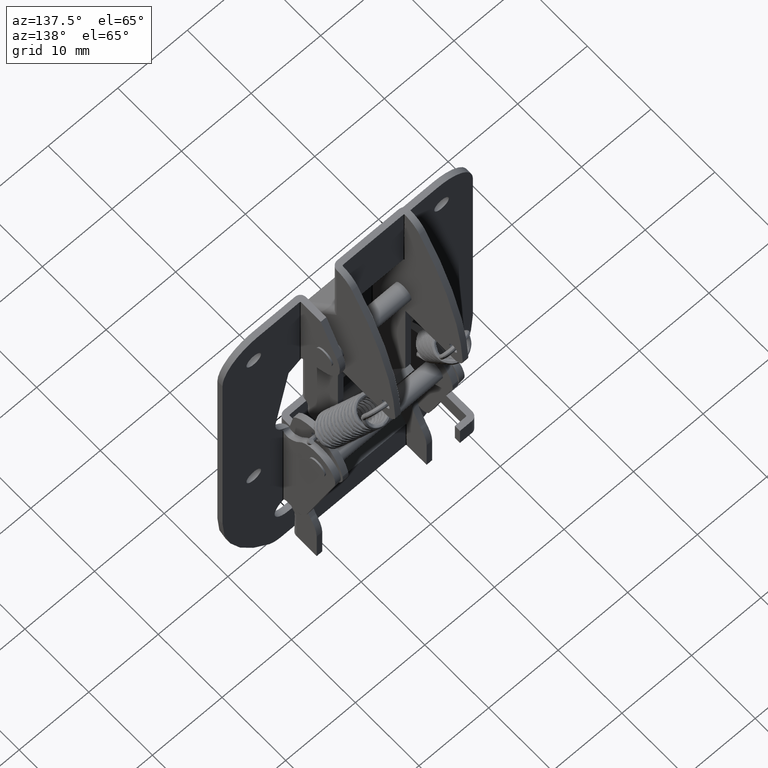
[diagram: clean part render]
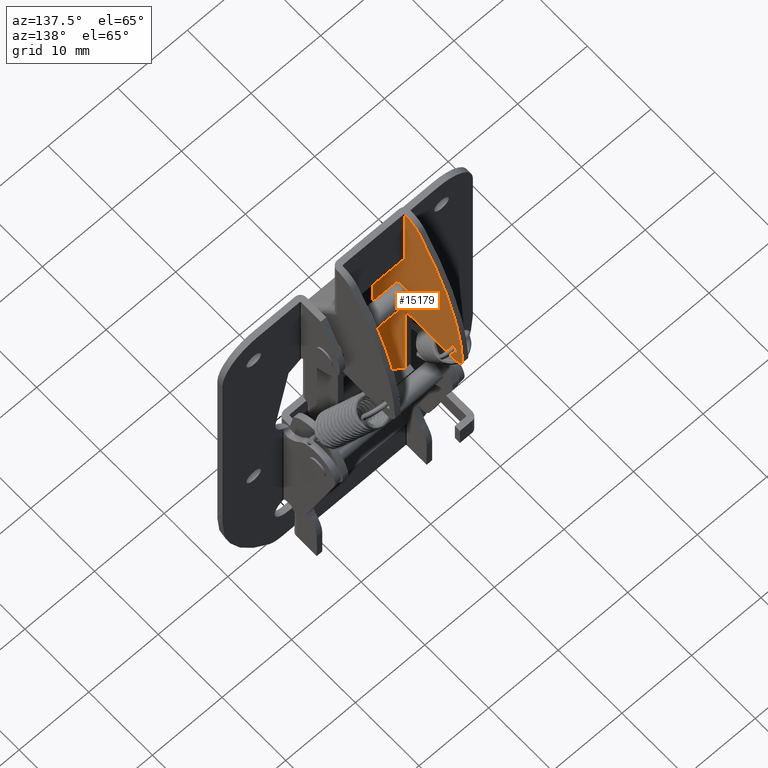
[diagram: same view with one face highlighted and labeled with its STEP entity id]
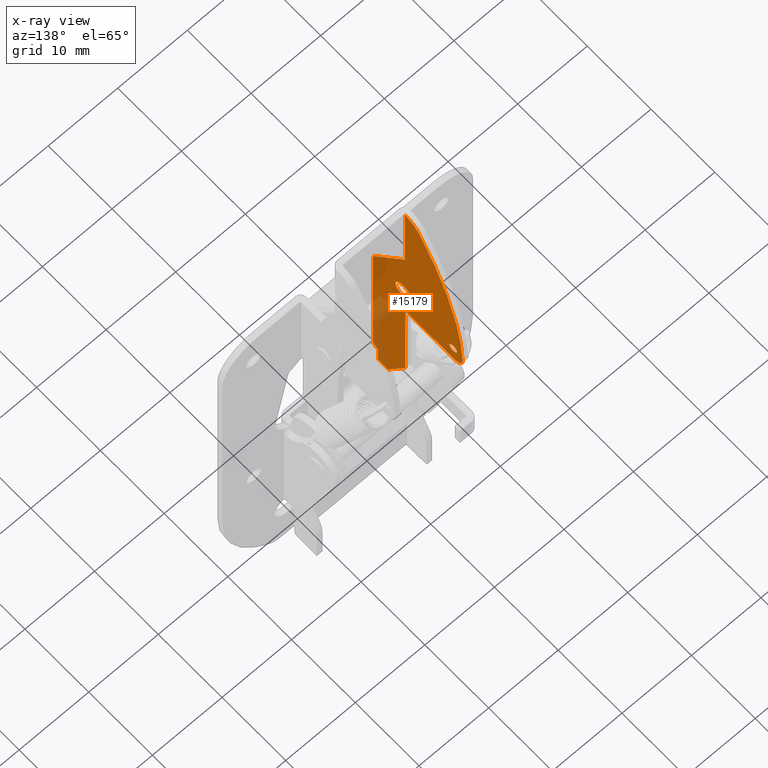
[diagram: x-ray of the same camera — body ghosted, the highlighted face saturated]
A machine part, auxiliary view. The second image highlights one B-rep face of the part: STEP entity #15179.
The next image is the same camera in x-ray: the body ghosted, the highlighted face saturated — about 15% of this face is hidden behind the body in this view.
In plain terms, the highlighted face is a freeform B-spline surface patch.
Its self-contained STEP definition (entity closure, byte-faithful):
#11710=CARTESIAN_POINT('',(9.049999999998448,13.095805715817340,-4.570820540801263));
#11711=VERTEX_POINT('',#11710);
#11712=CARTESIAN_POINT('',(9.049999999998450,12.500000000000000,-3.900000000000000));
#11713=VERTEX_POINT('',#11712);
#11714=CARTESIAN_POINT('',(9.049999999998448,13.095805715817340,-4.570820540801263));
#11715=CARTESIAN_POINT('',(9.049999999998450,13.100000000000003,-4.535534471798430));
#11716=CARTESIAN_POINT('',(9.049999999998450,13.100000000000000,-4.500000000000000));
#11717=CARTESIAN_POINT('',(9.049999999998450,13.100000000000000,-3.900000000000000));
#11718=CARTESIAN_POINT('',(9.049999999998450,12.500000000000000,-3.900000000000000));
#11726=(BOUNDED_CURVE()B_SPLINE_CURVE(2,(#11714,#11715,#11716,#11717,#11718),.UNSPECIFIED.,.F.,.U.)B_SPLINE_CURVE_WITH_KNOTS((3,2,3),(0.229562473511555,0.250000000000000,0.500000000000000),.UNSPECIFIED.)CURVE()GEOMETRIC_REPRESENTATION_ITEM()RATIONAL_B_SPLINE_CURVE((0.956026754179871,0.976055948328857,1.0,0.707106781186547,1.0))REPRESENTATION_ITEM(''));
#11727=EDGE_CURVE('',#11711,#11713,#11726,.T.);
#11729=CARTESIAN_POINT('',(9.049999999998450,11.901119120999031,-4.463370875426367));
#11730=VERTEX_POINT('',#11729);
#11731=CARTESIAN_POINT('',(9.049999999998450,12.500000000000000,-3.900000000000000));
#11732=CARTESIAN_POINT('',(9.049999999998450,11.935576361466905,-3.899999999999999));
#11733=CARTESIAN_POINT('',(9.049999999998450,11.901119120999040,-4.463370875426367));
#11741=(BOUNDED_CURVE()B_SPLINE_CURVE(2,(#11731,#11732,#11733),.UNSPECIFIED.,.F.,.U.)B_SPLINE_CURVE_WITH_KNOTS((3,3),(0.500000000000000,0.739332961750605),.UNSPECIFIED.)CURVE()GEOMETRIC_REPRESENTATION_ITEM()RATIONAL_B_SPLINE_CURVE((1.0,0.719603993858834,0.976072040620116))REPRESENTATION_ITEM(''));
#11742=EDGE_CURVE('',#11713,#11730,#11741,.T.);
#11809=CARTESIAN_POINT('',(9.049999999998450,12.500000000000000,-5.100000000000000));
#11810=VERTEX_POINT('',#11809);
#11811=CARTESIAN_POINT('',(9.049999999998450,12.500000000000000,-5.100000000000000));
#11812=CARTESIAN_POINT('',(9.049999999998450,13.032904715557837,-5.100000000000000));
#11813=CARTESIAN_POINT('',(9.049999999998448,13.095805715817340,-4.570820540801263));
#11821=(BOUNDED_CURVE()B_SPLINE_CURVE(2,(#11811,#11812,#11813),.UNSPECIFIED.,.F.,.U.)B_SPLINE_CURVE_WITH_KNOTS((3,3),(0.0,0.229562473511555),.UNSPECIFIED.)CURVE()GEOMETRIC_REPRESENTATION_ITEM()RATIONAL_B_SPLINE_CURVE((1.0,0.731050832857690,0.956026754179871))REPRESENTATION_ITEM(''));
#11822=EDGE_CURVE('',#11810,#11711,#11821,.T.);
#11856=CARTESIAN_POINT('',(9.049999999998450,11.901119120999031,-4.463370875426368));
#11857=CARTESIAN_POINT('',(9.049999999998452,11.900000000000000,-4.481668341165737));
#11858=CARTESIAN_POINT('',(9.049999999998450,11.900000000000000,-4.500000000000000));
#11859=CARTESIAN_POINT('',(9.049999999998450,11.900000000000000,-5.100000000000000));
#11860=CARTESIAN_POINT('',(9.049999999998450,12.500000000000000,-5.100000000000000));
#11868=(BOUNDED_CURVE()B_SPLINE_CURVE(2,(#11856,#11857,#11858,#11859,#11860),.UNSPECIFIED.,.F.,.U.)B_SPLINE_CURVE_WITH_KNOTS((3,2,3),(0.739332961750605,0.750000000000000,1.0),.UNSPECIFIED.)CURVE()GEOMETRIC_REPRESENTATION_ITEM()RATIONAL_B_SPLINE_CURVE((0.976072040620117,0.987502787327714,1.0,0.707106781186547,1.0))REPRESENTATION_ITEM(''));
#11869=EDGE_CURVE('',#11730,#11810,#11868,.T.);
#12086=CARTESIAN_POINT('',(9.049999999998452,5.941258907928507,-2.647542793540318));
#12087=VERTEX_POINT('',#12086);
#12088=CARTESIAN_POINT('',(9.049999999998450,4.699997000000000,-1.250000000000000));
#12089=VERTEX_POINT('',#12088);
#12090=CARTESIAN_POINT('',(9.049999999998452,5.941258907928507,-2.647542793540318));
#12091=CARTESIAN_POINT('',(9.049999999998448,5.949997000000001,-2.574030149786577));
#12092=CARTESIAN_POINT('',(9.049999999998450,5.949997000000001,-2.500000000000000));
#12093=CARTESIAN_POINT('',(9.049999999998450,5.949997000000001,-1.250000000000000));
#12094=CARTESIAN_POINT('',(9.049999999998450,4.699997000000000,-1.250000000000000));
#12102=(BOUNDED_CURVE()B_SPLINE_CURVE(2,(#12090,#12091,#12092,#12093,#12094),.UNSPECIFIED.,.F.,.U.)B_SPLINE_CURVE_WITH_KNOTS((3,2,3),(0.229562473455908,0.250000000000000,0.500000000000000),.UNSPECIFIED.)CURVE()GEOMETRIC_REPRESENTATION_ITEM()RATIONAL_B_SPLINE_CURVE((0.956026754070800,0.976055948263662,1.0,0.707106781186548,1.0))REPRESENTATION_ITEM(''));
#12103=EDGE_CURVE('',#12087,#12089,#12102,.T.);
#12105=CARTESIAN_POINT('',(9.049999999998450,3.452328501986199,-2.423689325360176));
#12106=VERTEX_POINT('',#12105);
#12107=CARTESIAN_POINT('',(9.049999999998450,4.699997000000000,-1.250000000000000));
#12108=CARTESIAN_POINT('',(9.049999999998450,3.524114416785707,-1.250000000000000));
#12109=CARTESIAN_POINT('',(9.049999999998450,3.452328501986199,-2.423689325360176));
#12117=(BOUNDED_CURVE()B_SPLINE_CURVE(2,(#12107,#12108,#12109),.UNSPECIFIED.,.F.,.U.)B_SPLINE_CURVE_WITH_KNOTS((3,3),(0.500000000000000,0.739332962180772),.UNSPECIFIED.)CURVE()GEOMETRIC_REPRESENTATION_ITEM()RATIONAL_B_SPLINE_CURVE((1.0,0.719603993354862,0.976072041542046))REPRESENTATION_ITEM(''));
#12118=EDGE_CURVE('',#12089,#12106,#12117,.T.);
#12185=CARTESIAN_POINT('',(9.049999999998450,4.699997000000000,-3.750000000000000));
#12186=VERTEX_POINT('',#12185);
#12187=CARTESIAN_POINT('',(9.049999999998450,4.699997000000000,-3.750000000000000));
#12188=CARTESIAN_POINT('',(9.049999999998452,5.810215157044026,-3.750000000000000));
#12189=CARTESIAN_POINT('',(9.049999999998452,5.941258907928507,-2.647542793540319));
#12197=(BOUNDED_CURVE()B_SPLINE_CURVE(2,(#12187,#12188,#12189),.UNSPECIFIED.,.F.,.U.)B_SPLINE_CURVE_WITH_KNOTS((3,3),(0.0,0.229562473455908),.UNSPECIFIED.)CURVE()GEOMETRIC_REPRESENTATION_ITEM()RATIONAL_B_SPLINE_CURVE((1.0,0.731050832922886,0.956026754070800))REPRESENTATION_ITEM(''));
#12198=EDGE_CURVE('',#12186,#12087,#12197,.T.);
#12232=CARTESIAN_POINT('',(9.049999999998450,3.452328501986199,-2.423689325360176));
#12233=CARTESIAN_POINT('',(9.049999999998448,3.449997000000000,-2.461809045654890));
#12234=CARTESIAN_POINT('',(9.049999999998450,3.449997000000000,-2.500000000000000));
#12235=CARTESIAN_POINT('',(9.049999999998450,3.449996999999999,-3.749999999999999));
#12236=CARTESIAN_POINT('',(9.049999999998450,4.699997000000000,-3.750000000000000));
#12244=(BOUNDED_CURVE()B_SPLINE_CURVE(2,(#12232,#12233,#12234,#12235,#12236),.UNSPECIFIED.,.F.,.U.)B_SPLINE_CURVE_WITH_KNOTS((3,2,3),(0.739332962180772,0.750000000000000,1.0),.UNSPECIFIED.)CURVE()GEOMETRIC_REPRESENTATION_ITEM()RATIONAL_B_SPLINE_CURVE((0.976072041542046,0.987502787831686,1.0,0.707106781186548,1.0))REPRESENTATION_ITEM(''));
#12245=EDGE_CURVE('',#12106,#12186,#12244,.T.);
#12266=CARTESIAN_POINT('',(9.050000000000001,4.900000000000000,16.994080849556148));
#12267=VERTEX_POINT('',#12266);
#12286=CARTESIAN_POINT('',(9.050000000000001,4.900000000000000,5.711573349733659));
#12287=VERTEX_POINT('',#12286);
#12303=CARTESIAN_POINT('',(9.050000000000001,4.900000000000000,16.994080849556148));
#12304=CARTESIAN_POINT('',(9.050000000000001,4.900000000000000,5.711573349733659));
#12305=QUASI_UNIFORM_CURVE('',1,(#12303,#12304),.UNSPECIFIED.,.F.,.U.);
#12306=EDGE_CURVE('',#12267,#12287,#12305,.T.);
#12327=CARTESIAN_POINT('',(9.050000000000001,-0.100000000000085,-1.288519050101064));
#12328=VERTEX_POINT('',#12327);
#12344=CARTESIAN_POINT('',(9.050000000000001,4.900000000000000,5.711573349733659));
#12345=CARTESIAN_POINT('',(9.050000000000001,-0.100000000000085,-1.288519050101064));
#12346=QUASI_UNIFORM_CURVE('',1,(#12344,#12345),.UNSPECIFIED.,.F.,.U.);
#12347=EDGE_CURVE('',#12287,#12328,#12346,.T.);
#12374=CARTESIAN_POINT('',(9.050000000000001,-0.100000000000093,-23.018504542377649));
#12375=VERTEX_POINT('',#12374);
#12389=CARTESIAN_POINT('',(9.050000000000001,-0.100000000000085,-1.288519050101064));
#12390=CARTESIAN_POINT('',(9.050000000000001,-0.100000000000093,-23.018504542377649));
#12391=QUASI_UNIFORM_CURVE('',1,(#12389,#12390),.UNSPECIFIED.,.F.,.U.);
#12392=EDGE_CURVE('',#12328,#12375,#12391,.T.);
#12419=CARTESIAN_POINT('',(9.050000000000001,0.699999999999907,-23.480384757729350));
#12420=VERTEX_POINT('',#12419);
#12434=CARTESIAN_POINT('',(9.050000000000001,-0.100000000000093,-23.018504542377649));
#12435=CARTESIAN_POINT('',(9.050000000000001,0.699999999999907,-23.480384757729350));
#12436=QUASI_UNIFORM_CURVE('',1,(#12434,#12435),.UNSPECIFIED.,.F.,.U.);
#12437=EDGE_CURVE('',#12375,#12420,#12436,.T.);
#12462=CARTESIAN_POINT('',(9.050000000000001,0.699999999999906,-26.018664109627050));
#12463=VERTEX_POINT('',#12462);
#12479=CARTESIAN_POINT('',(9.050000000000001,0.699999999999907,-23.480384757729350));
#12480=CARTESIAN_POINT('',(9.050000000000001,0.699999999999906,-26.018664109627050));
#12481=QUASI_UNIFORM_CURVE('',1,(#12479,#12480),.UNSPECIFIED.,.F.,.U.);
#12482=EDGE_CURVE('',#12420,#12463,#12481,.T.);
#13833=CARTESIAN_POINT('',(9.050000000000001,0.835335733045166,-26.0));
#13834=VERTEX_POINT('',#13833);
#13840=CARTESIAN_POINT('',(9.050000000000001,0.699999999999910,-26.018664109627071));
#13841=CARTESIAN_POINT('',(9.050000000000001,0.766380885692225,-26.0));
#13842=CARTESIAN_POINT('',(9.050000000000001,0.835335733045166,-26.0));
#13850=(BOUNDED_CURVE()B_SPLINE_CURVE(2,(#13840,#13841,#13842),.UNSPECIFIED.,.F.,.U.)CURVE()GEOMETRIC_REPRESENTATION_ITEM()QUASI_UNIFORM_CURVE()RATIONAL_B_SPLINE_CURVE((1.0,0.990623990408537,1.0))REPRESENTATION_ITEM(''));
#13851=EDGE_CURVE('',#12463,#13834,#13850,.T.);
#14426=CARTESIAN_POINT('',(9.050000000000001,7.200350372967740,15.675195559438100));
#14427=VERTEX_POINT('',#14426);
#14428=CARTESIAN_POINT('',(9.050000000000001,13.999317999472900,-5.454772392760360));
#14429=VERTEX_POINT('',#14428);
#14430=CARTESIAN_POINT('',(9.050000000000001,7.200350372967740,15.675195559438100));
#14431=CARTESIAN_POINT('',(9.050000000000001,13.651003553719395,6.091982759823052));
#14432=CARTESIAN_POINT('',(9.050000000000001,13.999317999472900,-5.454772392760360));
#14440=(BOUNDED_CURVE()B_SPLINE_CURVE(2,(#14430,#14431,#14432),.UNSPECIFIED.,.F.,.U.)CURVE()GEOMETRIC_REPRESENTATION_ITEM()QUASI_UNIFORM_CURVE()RATIONAL_B_SPLINE_CURVE((1.0,0.960736901955118,1.0))REPRESENTATION_ITEM(''));
#14441=EDGE_CURVE('',#14427,#14429,#14440,.T.);
#14487=CARTESIAN_POINT('',(9.050000000000001,12.500000000000000,-6.999999999999920));
#14488=VERTEX_POINT('',#14487);
#14489=CARTESIAN_POINT('',(9.050000000000001,13.999317999472890,-5.454772392760359));
#14490=CARTESIAN_POINT('',(9.050000000000001,14.018452623171941,-6.089094822711759));
#14491=CARTESIAN_POINT('',(9.050000000000001,13.576531794899591,-6.544547411355880));
#14492=CARTESIAN_POINT('',(9.050000000000001,13.134610966627237,-6.999999999999999));
#14493=CARTESIAN_POINT('',(9.050000000000001,12.500000000000000,-6.999999999999920));
#14501=(BOUNDED_CURVE()B_SPLINE_CURVE(2,(#14489,#14490,#14491,#14492,#14493),.UNSPECIFIED.,.F.,.U.)B_SPLINE_CURVE_WITH_KNOTS((3,2,3),(0.0,0.500000000000000,1.0),.UNSPECIFIED.)CURVE()GEOMETRIC_REPRESENTATION_ITEM()RATIONAL_B_SPLINE_CURVE((1.0,0.920968224452918,1.0,0.920968224452918,1.0))REPRESENTATION_ITEM(''));
#14502=EDGE_CURVE('',#14429,#14488,#14501,.T.);
#14536=CARTESIAN_POINT('',(9.050000000000001,4.999999999999920,-6.999999999999920));
#14537=VERTEX_POINT('',#14536);
#14538=CARTESIAN_POINT('',(9.050000000000001,4.999999999999920,-6.999999999999920));
#14539=CARTESIAN_POINT('',(9.050000000000001,12.500000000000000,-6.999999999999920));
#14540=QUASI_UNIFORM_CURVE('',1,(#14538,#14539),.UNSPECIFIED.,.F.,.U.);
#14541=EDGE_CURVE('',#14537,#14488,#14540,.T.);
#14564=CARTESIAN_POINT('',(9.050000000000001,4.999999999999910,-21.323462819564000));
#14565=VERTEX_POINT('',#14564);
#14566=CARTESIAN_POINT('',(9.050000000000001,4.999999999999910,-21.323462819564000));
#14567=CARTESIAN_POINT('',(9.050000000000001,4.999999999999920,-6.999999999999920));
#14568=QUASI_UNIFORM_CURVE('',1,(#14566,#14567),.UNSPECIFIED.,.F.,.U.);
#14569=EDGE_CURVE('',#14565,#14537,#14568,.T.);
#14592=CARTESIAN_POINT('',(9.050000000000001,2.299999999999905,-26.0));
#14593=VERTEX_POINT('',#14592);
#14594=CARTESIAN_POINT('',(9.050000000000001,2.299999999999905,-26.0));
#14595=CARTESIAN_POINT('',(9.050000000000001,4.999999999999910,-21.323462819564000));
#14596=QUASI_UNIFORM_CURVE('',1,(#14594,#14595),.UNSPECIFIED.,.F.,.U.);
#14597=EDGE_CURVE('',#14593,#14565,#14596,.T.);
#14720=CARTESIAN_POINT('',(9.050000000000001,4.900000000000000,16.994080849556148));
#14721=CARTESIAN_POINT('',(9.050000000000001,6.375053682243152,16.901281751956457));
#14722=CARTESIAN_POINT('',(9.050000000000001,7.200350372967740,15.675195559438100));
#14730=(BOUNDED_CURVE()B_SPLINE_CURVE(2,(#14720,#14721,#14722),.UNSPECIFIED.,.F.,.U.)CURVE()GEOMETRIC_REPRESENTATION_ITEM()QUASI_UNIFORM_CURVE()RATIONAL_B_SPLINE_CURVE((1.0,0.897046324066299,1.0))REPRESENTATION_ITEM(''));
#14731=EDGE_CURVE('',#12267,#14427,#14730,.T.);
#14950=CARTESIAN_POINT('',(9.050000000000001,0.835335733045166,-26.0));
#14951=CARTESIAN_POINT('',(9.050000000000001,2.299999999999905,-26.0));
#14952=QUASI_UNIFORM_CURVE('',1,(#14950,#14951),.UNSPECIFIED.,.F.,.U.);
#14953=EDGE_CURVE('',#13834,#14593,#14952,.T.);
#15147=CARTESIAN_POINT('',(9.050000000000001,14.703871409243490,19.142568030774310));
#15148=CARTESIAN_POINT('',(9.050000000000001,-0.804275200369092,19.142568030774310));
#15149=CARTESIAN_POINT('',(9.050000000000001,14.703871409243490,-28.167148598897860));
#15150=CARTESIAN_POINT('',(9.050000000000001,-0.804275200369092,-28.167148598897860));
#15151=B_SPLINE_SURFACE_WITH_KNOTS('',1,1,((#15147,#15149),(#15148,#15150)),.UNSPECIFIED.,.F.,.F.,.U.,(2,2),(2,2),(0.0,15.508146609612581),(0.0,47.309716629672167),.UNSPECIFIED.);
#15152=ORIENTED_EDGE('',*,*,#14731,.F.);
#15153=ORIENTED_EDGE('',*,*,#12306,.T.);
#15154=ORIENTED_EDGE('',*,*,#12347,.T.);
#15155=ORIENTED_EDGE('',*,*,#12392,.T.);
#15156=ORIENTED_EDGE('',*,*,#12437,.T.);
#15157=ORIENTED_EDGE('',*,*,#12482,.T.);
#15158=ORIENTED_EDGE('',*,*,#13851,.T.);
#15159=ORIENTED_EDGE('',*,*,#14953,.T.);
#15160=ORIENTED_EDGE('',*,*,#14597,.T.);
#15161=ORIENTED_EDGE('',*,*,#14569,.T.);
#15162=ORIENTED_EDGE('',*,*,#14541,.T.);
#15163=ORIENTED_EDGE('',*,*,#14502,.F.);
#15164=ORIENTED_EDGE('',*,*,#14441,.F.);
#15165=EDGE_LOOP('',(#15152,#15153,#15154,#15155,#15156,#15157,#15158,#15159,#15160,#15161,#15162,#15163,#15164));
#15166=FACE_OUTER_BOUND('',#15165,.T.);
#15167=ORIENTED_EDGE('',*,*,#12118,.F.);
#15168=ORIENTED_EDGE('',*,*,#12103,.F.);
#15169=ORIENTED_EDGE('',*,*,#12198,.F.);
#15170=ORIENTED_EDGE('',*,*,#12245,.F.);
#15171=EDGE_LOOP('',(#15167,#15168,#15169,#15170));
#15172=FACE_BOUND('',#15171,.T.);
#15173=ORIENTED_EDGE('',*,*,#11742,.F.);
#15174=ORIENTED_EDGE('',*,*,#11727,.F.);
#15175=ORIENTED_EDGE('',*,*,#11822,.F.);
#15176=ORIENTED_EDGE('',*,*,#11869,.F.);
#15177=EDGE_LOOP('',(#15173,#15174,#15175,#15176));
#15178=FACE_BOUND('',#15177,.T.);
#15179=ADVANCED_FACE('',(#15166,#15172,#15178),#15151,.T.);